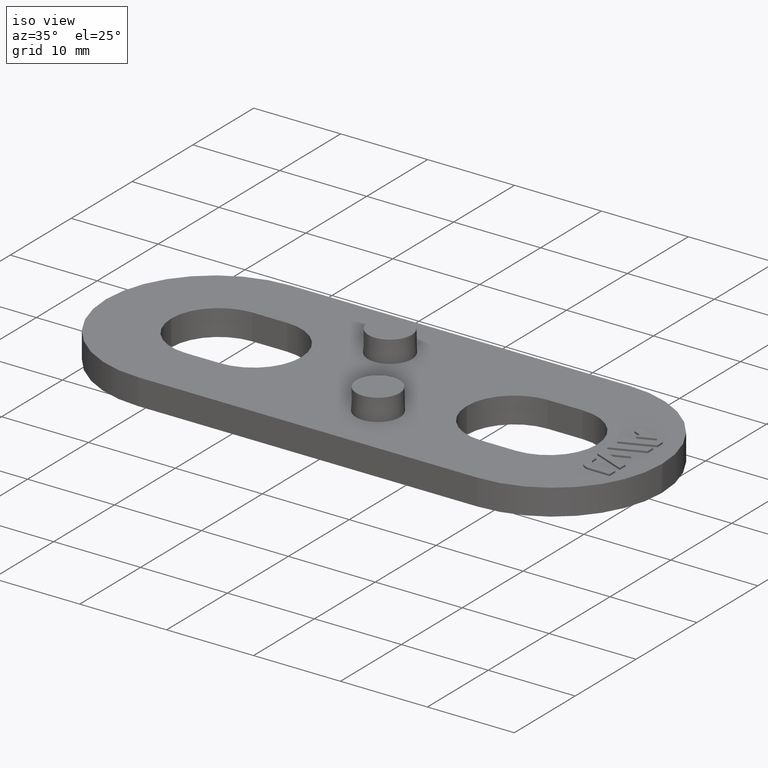
[diagram: clean part render]
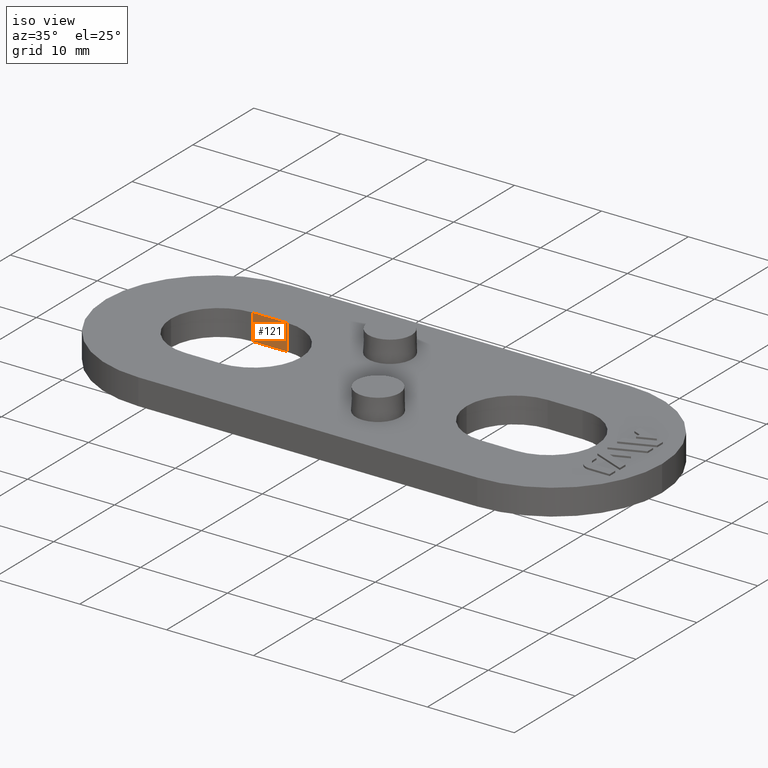
[diagram: same view with one face highlighted and labeled with its STEP entity id]
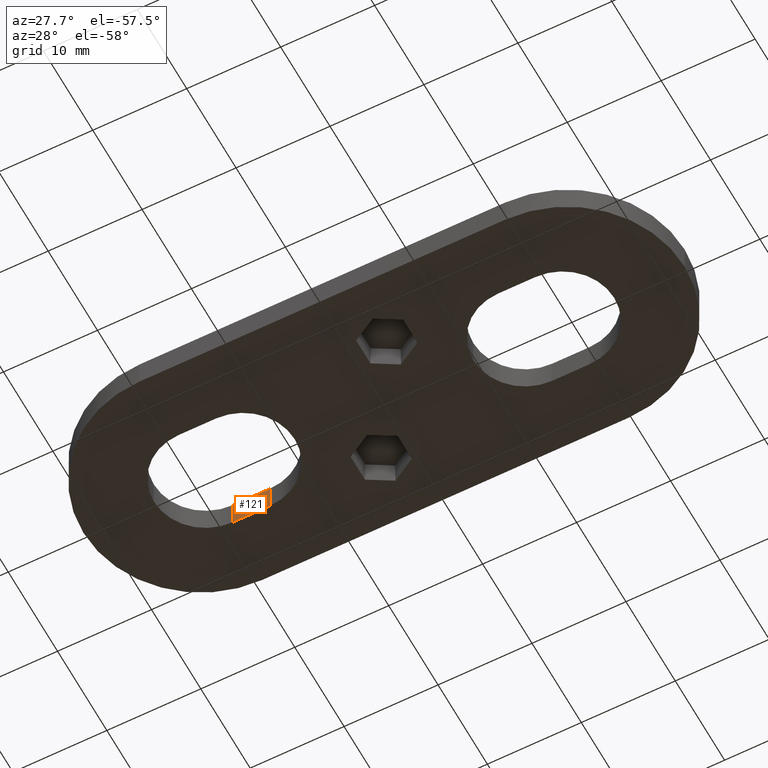
[diagram: same view with one face highlighted and labeled with its STEP entity id]
A machine part, iso view. The second image highlights one B-rep face of the part: STEP entity #121.
A second angle (auxiliary view) of the same face is appended — the face is thin or edge-on in the first view.
In plain terms, the highlighted planar face has unit normal (-0, 1, -0).
Its self-contained STEP definition (entity closure, byte-faithful):
#121 = ADVANCED_FACE( '', ( #254 ), #255, .F. );
#254 = FACE_OUTER_BOUND( '', #411, .T. );
#255 = PLANE( '', #412 );
#411 = EDGE_LOOP( '', ( #851, #852, #853, #854 ) );
#412 = AXIS2_PLACEMENT_3D( '', #855, #856, #857 );
#851 = ORIENTED_EDGE( '', *, *, #1043, .F. );
#852 = ORIENTED_EDGE( '', *, *, #1132, .T. );
#853 = ORIENTED_EDGE( '', *, *, #1103, .T. );
#854 = ORIENTED_EDGE( '', *, *, #1167, .F. );
#855 = CARTESIAN_POINT( '', ( -15.0000000000000, 5.50000000000000, -1.00000000042774E-005 ) );
#856 = DIRECTION( '', ( -6.12303176911189E-017, 1.00000000000000, -6.12303176911189E-017 ) );
#857 = DIRECTION( '', ( 1.00000000000000, 6.12303176911189E-017, -3.74915180455534E-033 ) );
#1043 = EDGE_CURVE( '', #1233, #1235, #1236, .F. );
#1103 = EDGE_CURVE( '', #1342, #1350, #1352, .T. );
#1132 = EDGE_CURVE( '', #1233, #1342, #1396, .T. );
#1167 = EDGE_CURVE( '', #1235, #1350, #1445, .T. );
#1233 = VERTEX_POINT( '', #1539 );
#1235 = VERTEX_POINT( '', #1541 );
#1236 = LINE( '', #1542, #1543 );
#1342 = VERTEX_POINT( '', #1691 );
#1350 = VERTEX_POINT( '', #1700 );
#1352 = LINE( '', #1702, #1703 );
#1396 = LINE( '', #1766, #1767 );
#1445 = LINE( '', #1848, #1849 );
#1539 = CARTESIAN_POINT( '', ( -15.0000000000000, 5.49999999999999, -2.60208521396521E-015 ) );
#1541 = CARTESIAN_POINT( '', ( -19.0000000000000, 5.50000000000000, -2.60208521396521E-015 ) );
#1542 = CARTESIAN_POINT( '', ( 19.5000000000000, 5.49999999999996, -2.60208521396521E-015 ) );
#1543 = VECTOR( '', #1973, 1000.00000000000 );
#1691 = CARTESIAN_POINT( '', ( -15.0000000000000, 5.50000000000000, 3.00000299994030 ) );
#1700 = CARTESIAN_POINT( '', ( -19.0000000000000, 5.50000000000000, 3.00000299994030 ) );
#1702 = CARTESIAN_POINT( '', ( -15.0000000000000, 5.50000000000000, 3.00000299994030 ) );
#1703 = VECTOR( '', #2065, 1000.00000000000 );
#1766 = CARTESIAN_POINT( '', ( -15.0000000000000, 5.50000000000000, -1.00000000042774E-005 ) );
#1767 = VECTOR( '', #2112, 1000.00000000000 );
#1848 = CARTESIAN_POINT( '', ( -19.0000000000000, 5.50000000000000, -1.00000000042774E-005 ) );
#1849 = VECTOR( '', #2151, 1000.00000000000 );
#1973 = DIRECTION( '', ( 1.00000000000000, -8.93897586159986E-016, 5.47336331839003E-032 ) );
#2065 = DIRECTION( '', ( -1.00000000000000, -6.12303176911189E-017, 3.74915180455534E-033 ) );
#2112 = DIRECTION( '', ( 0.000000000000000, 6.12303176911189E-017, 1.00000000000000 ) );
#2151 = DIRECTION( '', ( 0.000000000000000, 6.12303176911189E-017, 1.00000000000000 ) );